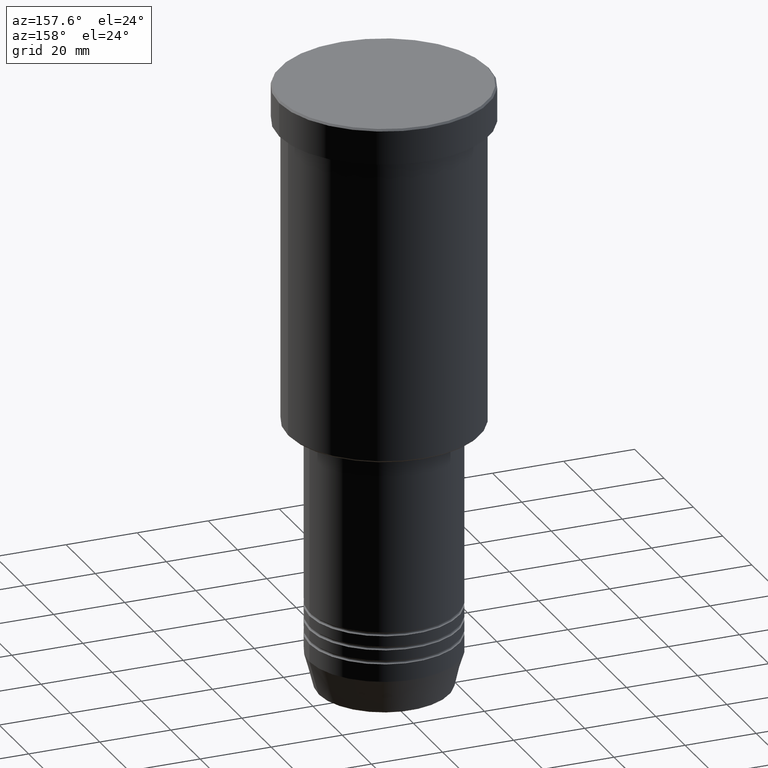
[diagram: clean part render]
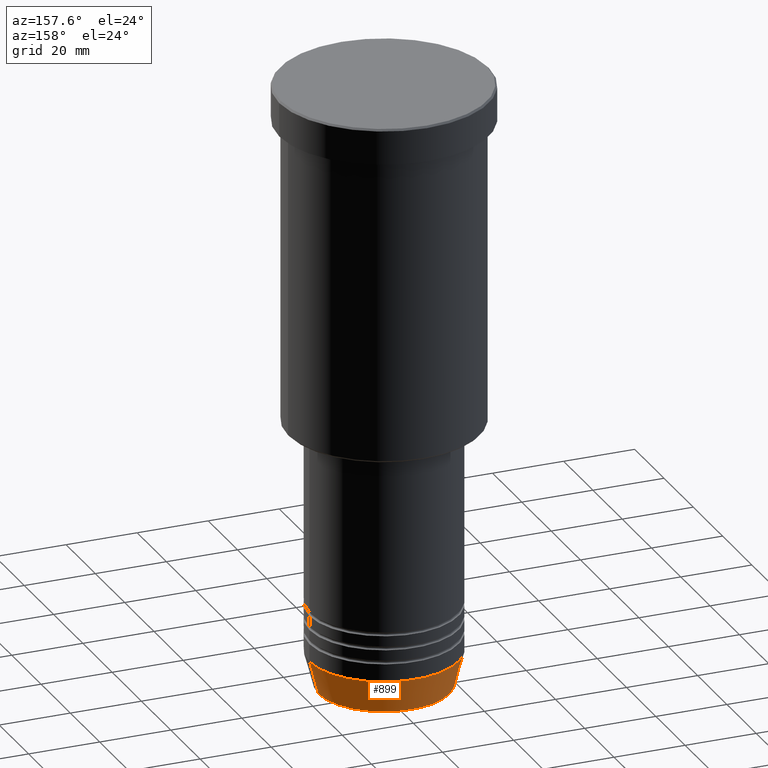
[diagram: same view with one face highlighted and labeled with its STEP entity id]
A machine part, auxiliary view. The second image highlights one B-rep face of the part: STEP entity #899.
In plain terms, the highlighted conical surface has half-angle 15 deg.
Its self-contained STEP definition (entity closure, byte-faithful):
#75 = LINE ( 'NONE', #420, #317 ) ;
#103 = VERTEX_POINT ( 'NONE', #456 ) ;
#206 = VERTEX_POINT ( 'NONE', #916 ) ;
#227 = DIRECTION ( 'NONE',  ( -0.2588190451025211836, 3.169619151431770488E-17, 0.9659258262890680902 ) ) ;
#242 = DIRECTION ( 'NONE',  ( -0.000000000000000000, -0.000000000000000000, 1.000000000000000000 ) ) ;
#246 = EDGE_CURVE ( 'NONE', #206, #309, #614, .T. ) ;
#304 = ORIENTED_EDGE ( 'NONE', *, *, #246, .T. ) ;
#309 = VERTEX_POINT ( 'NONE', #894 ) ;
#317 = VECTOR ( 'NONE', #1082, 1000.000000000000114 ) ;
#332 = CARTESIAN_POINT ( 'NONE',  ( 0.000000000000000000, 0.000000000000000000, -160.9999999999999716 ) ) ;
#365 = AXIS2_PLACEMENT_3D ( 'NONE', #402, #762, #835 ) ;
#371 = ORIENTED_EDGE ( 'NONE', *, *, #436, .F. ) ;
#382 = VERTEX_POINT ( 'NONE', #756 ) ;
#402 = CARTESIAN_POINT ( 'NONE',  ( 0.000000000000000000, 0.000000000000000000, -170.6294095225512706 ) ) ;
#420 = CARTESIAN_POINT ( 'NONE',  ( 21.00000000000000000, 0.000000000000000000, -160.9999999999999716 ) ) ;
#436 = EDGE_CURVE ( 'NONE', #103, #382, #75, .T. ) ;
#456 = CARTESIAN_POINT ( 'NONE',  ( 18.41980749484383040, 0.000000000000000000, -170.6294095225512706 ) ) ;
#472 = EDGE_CURVE ( 'NONE', #382, #309, #1091, .T. ) ;
#511 = DIRECTION ( 'NONE',  ( 1.000000000000000000, 0.000000000000000000, 0.000000000000000000 ) ) ;
#514 = ORIENTED_EDGE ( 'NONE', *, *, #710, .T. ) ;
#521 = CARTESIAN_POINT ( 'NONE',  ( -21.00000000000000000, 2.571758278209441661E-15, -160.9999999999999716 ) ) ;
#522 = EDGE_LOOP ( 'NONE', ( #514, #304, #1090, #371 ) ) ;
#551 = AXIS2_PLACEMENT_3D ( 'NONE', #693, #242, #968 ) ;
#614 = LINE ( 'NONE', #521, #843 ) ;
#693 = CARTESIAN_POINT ( 'NONE',  ( 0.000000000000000000, 0.000000000000000000, -160.9999999999999716 ) ) ;
#710 = EDGE_CURVE ( 'NONE', #103, #206, #792, .T. ) ;
#728 = AXIS2_PLACEMENT_3D ( 'NONE', #332, #967, #511 ) ;
#756 = CARTESIAN_POINT ( 'NONE',  ( 21.00000000000000000, 0.000000000000000000, -160.9999999999999716 ) ) ;
#762 = DIRECTION ( 'NONE',  ( -0.000000000000000000, -0.000000000000000000, 1.000000000000000000 ) ) ;
#792 = CIRCLE ( 'NONE', #365, 18.41980749484383040 ) ;
#835 = DIRECTION ( 'NONE',  ( 1.000000000000000000, 0.000000000000000000, 0.000000000000000000 ) ) ;
#843 = VECTOR ( 'NONE', #227, 1000.000000000000114 ) ;
#894 = CARTESIAN_POINT ( 'NONE',  ( -21.00000000000000000, 2.571758278209441661E-15, -160.9999999999999716 ) ) ;
#899 = ADVANCED_FACE ( 'NONE', ( #1067 ), #983, .T. ) ;
#916 = CARTESIAN_POINT ( 'NONE',  ( -18.41980749484383040, 2.413767053578267064E-15, -170.6294095225512706 ) ) ;
#967 = DIRECTION ( 'NONE',  ( -0.000000000000000000, -0.000000000000000000, 1.000000000000000000 ) ) ;
#968 = DIRECTION ( 'NONE',  ( 1.000000000000000000, 0.000000000000000000, 0.000000000000000000 ) ) ;
#983 = CONICAL_SURFACE ( 'NONE', #728, 21.00000000000000000, 0.2617993877991499074 ) ;
#1067 = FACE_OUTER_BOUND ( 'NONE', #522, .T. ) ;
#1082 = DIRECTION ( 'NONE',  ( 0.2588190451025211836, 0.000000000000000000, 0.9659258262890680902 ) ) ;
#1090 = ORIENTED_EDGE ( 'NONE', *, *, #472, .F. ) ;
#1091 = CIRCLE ( 'NONE', #551, 21.00000000000000000 ) ;